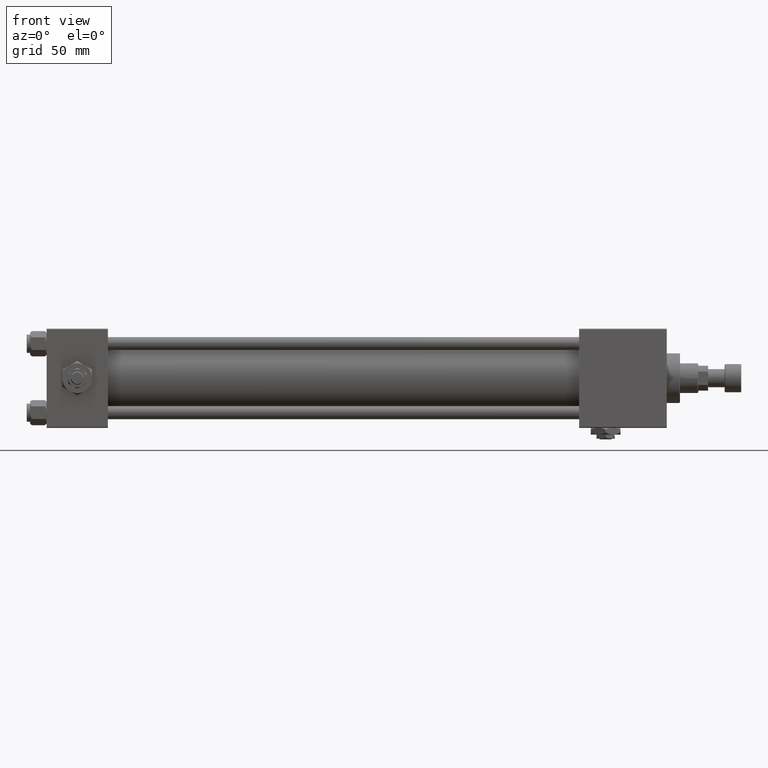
[diagram: clean part render]
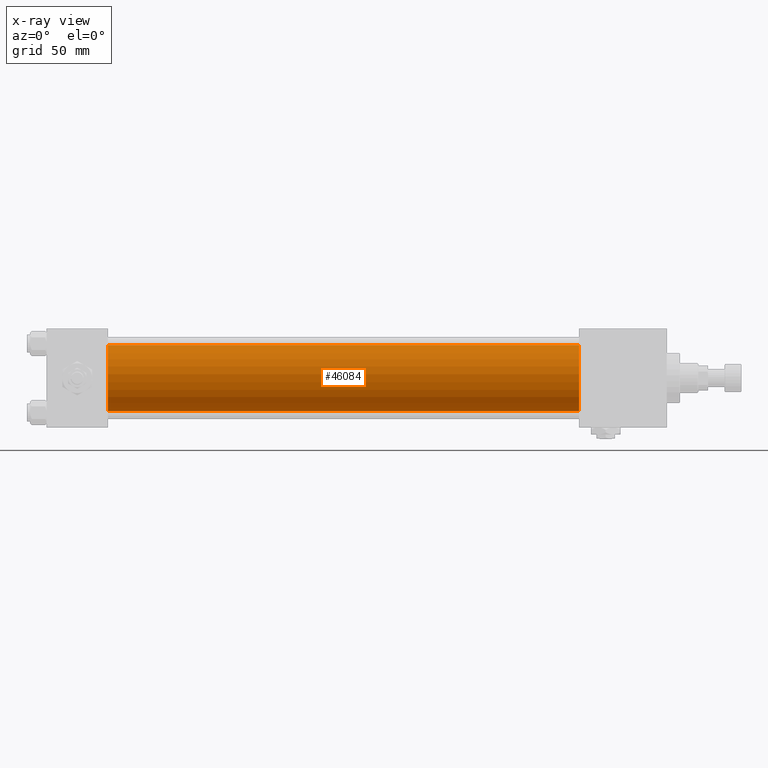
[diagram: x-ray — body ghosted, one internal face saturated and labeled with its STEP entity id]
A machine part, front view, then the same camera in x-ray: the body is ghosted and one INTERNAL B-rep face — a face not visible from any outside direction — is saturated and labeled: STEP entity #46084.
In plain terms, the highlighted cylindrical surface (edge-blend (fillet) strip) has radius 20 mm, axis along (-1, -0, -0).
Its self-contained STEP definition (entity closure, byte-faithful):
#1010 = DIRECTION ( 'NONE',  ( 0.000000000000000000, 0.000000000000000000, 1.000000000000000000 ) ) ;
#1694 = CARTESIAN_POINT ( 'NONE',  ( 321.9999999999999432, -2.602085213965210642E-15, 20.00000000000000000 ) ) ;
#3701 = AXIS2_PLACEMENT_3D ( 'NONE', #32264, #12060, #28265 ) ;
#4147 = VECTOR ( 'NONE', #34915, 1000.000000000000000 ) ;
#4480 = ORIENTED_EDGE ( 'NONE', *, *, #35704, .T. ) ;
#5267 = FACE_OUTER_BOUND ( 'NONE', #39077, .T. ) ;
#7729 = ORIENTED_EDGE ( 'NONE', *, *, #16462, .F. ) ;
#9272 = DIRECTION ( 'NONE',  ( -1.000000000000000000, -0.000000000000000000, -0.000000000000000000 ) ) ;
#10325 = CARTESIAN_POINT ( 'NONE',  ( 321.9999999999999432, -2.602085213965210642E-15, 0.000000000000000000 ) ) ;
#12060 = DIRECTION ( 'NONE',  ( 1.000000000000000000, 0.000000000000000000, 0.000000000000000000 ) ) ;
#14056 = CYLINDRICAL_SURFACE ( 'NONE', #30747, 20.00000000000000000 ) ;
#14752 = DIRECTION ( 'NONE',  ( -1.000000000000000000, -0.000000000000000000, -0.000000000000000000 ) ) ;
#15608 = CARTESIAN_POINT ( 'NONE',  ( 37.00000000000000000, -2.602085213965210642E-15, 20.00000000000000000 ) ) ;
#16462 = EDGE_CURVE ( 'NONE', #42023, #26773, #51423, .T. ) ;
#17212 = ORIENTED_EDGE ( 'NONE', *, *, #26501, .T. ) ;
#19375 = VERTEX_POINT ( 'NONE', #47771 ) ;
#19531 = DIRECTION ( 'NONE',  ( 0.000000000000000000, 0.000000000000000000, -1.000000000000000000 ) ) ;
#20313 = CIRCLE ( 'NONE', #41576, 20.00000000000000000 ) ;
#23491 = VECTOR ( 'NONE', #14752, 1000.000000000000000 ) ;
#24022 = DIRECTION ( 'NONE',  ( 1.000000000000000000, 0.000000000000000000, 0.000000000000000000 ) ) ;
#26501 = EDGE_CURVE ( 'NONE', #28796, #19375, #42942, .T. ) ;
#26773 = VERTEX_POINT ( 'NONE', #15608 ) ;
#28265 = DIRECTION ( 'NONE',  ( 0.000000000000000000, 0.000000000000000000, -1.000000000000000000 ) ) ;
#28309 = CARTESIAN_POINT ( 'NONE',  ( 321.9999999999999432, -1.527916156705042519E-16, -20.00000000000000000 ) ) ;
#28796 = VERTEX_POINT ( 'NONE', #28309 ) ;
#30747 = AXIS2_PLACEMENT_3D ( 'NONE', #10325, #9272, #1010 ) ;
#32264 = CARTESIAN_POINT ( 'NONE',  ( 37.00000000000000000, -2.602085213965210642E-15, 0.000000000000000000 ) ) ;
#34222 = ORIENTED_EDGE ( 'NONE', *, *, #50273, .F. ) ;
#34915 = DIRECTION ( 'NONE',  ( -1.000000000000000000, -0.000000000000000000, -0.000000000000000000 ) ) ;
#35704 = EDGE_CURVE ( 'NONE', #42023, #28796, #20313, .T. ) ;
#39077 = EDGE_LOOP ( 'NONE', ( #4480, #17212, #34222, #7729 ) ) ;
#40520 = CARTESIAN_POINT ( 'NONE',  ( 321.9999999999999432, -2.602085213965210642E-15, 0.000000000000000000 ) ) ;
#41020 = CARTESIAN_POINT ( 'NONE',  ( 321.9999999999999432, -2.602085213965210642E-15, 20.00000000000000000 ) ) ;
#41576 = AXIS2_PLACEMENT_3D ( 'NONE', #40520, #24022, #19531 ) ;
#42023 = VERTEX_POINT ( 'NONE', #41020 ) ;
#42785 = CIRCLE ( 'NONE', #3701, 20.00000000000000000 ) ;
#42942 = LINE ( 'NONE', #51448, #23491 ) ;
#46084 = ADVANCED_FACE ( 'NONE', ( #5267 ), #14056, .F. ) ;
#47771 = CARTESIAN_POINT ( 'NONE',  ( 37.00000000000000000, -1.527916156705042519E-16, -20.00000000000000000 ) ) ;
#50273 = EDGE_CURVE ( 'NONE', #26773, #19375, #42785, .T. ) ;
#51423 = LINE ( 'NONE', #1694, #4147 ) ;
#51448 = CARTESIAN_POINT ( 'NONE',  ( 321.9999999999999432, -1.527916156705042519E-16, -20.00000000000000000 ) ) ;